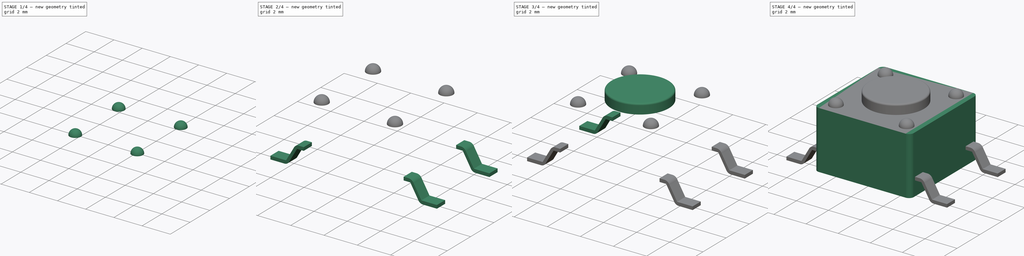
[diagram: build sequence overview — one tinted view per stage of 4, left to right]
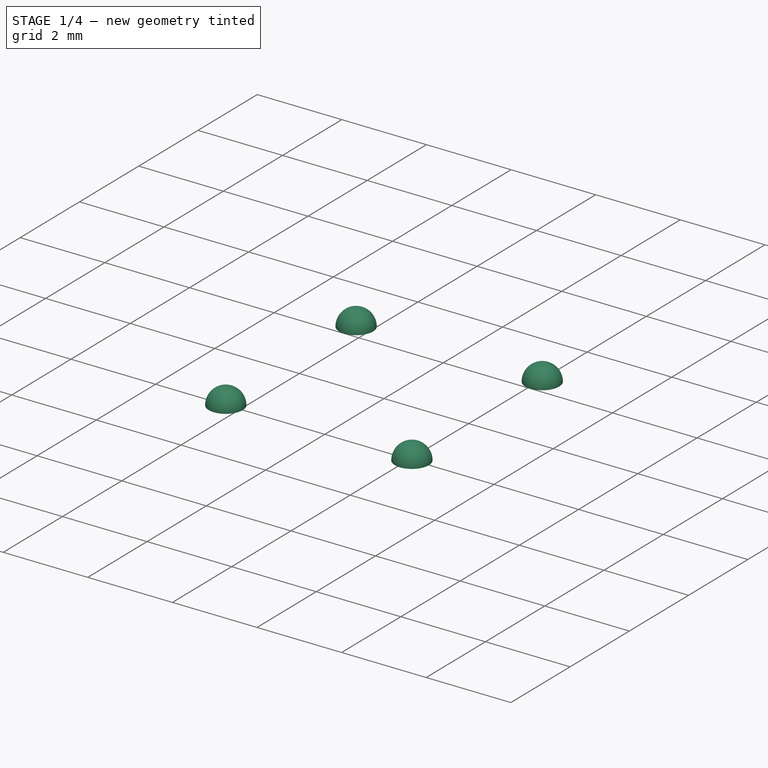
[diagram: stage 1 of 4 — iso view after this stage's code; geometry added in this stage tinted green]
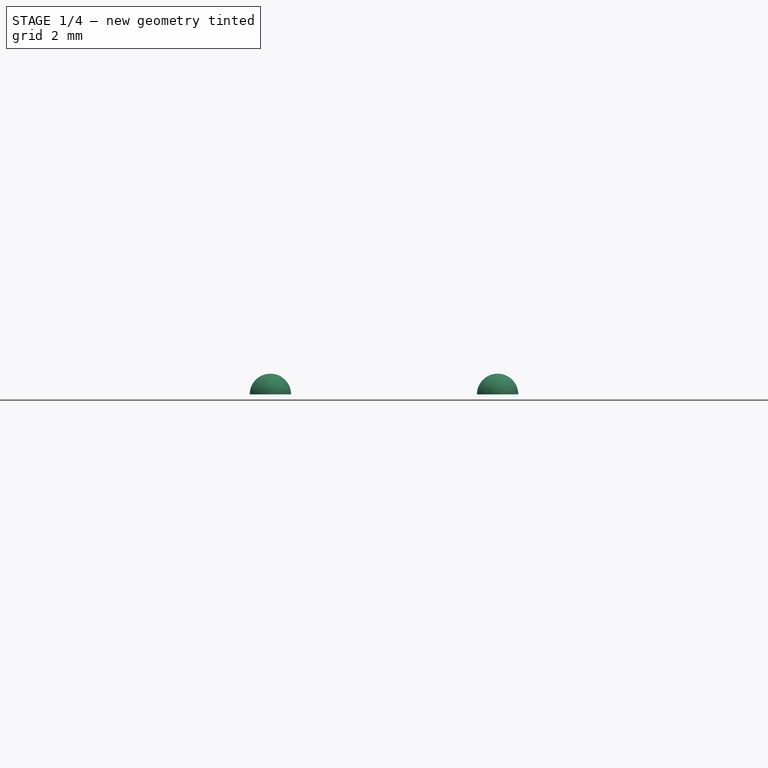
[diagram: stage 1 of 4 — front view after this stage's code; geometry added in this stage tinted green]
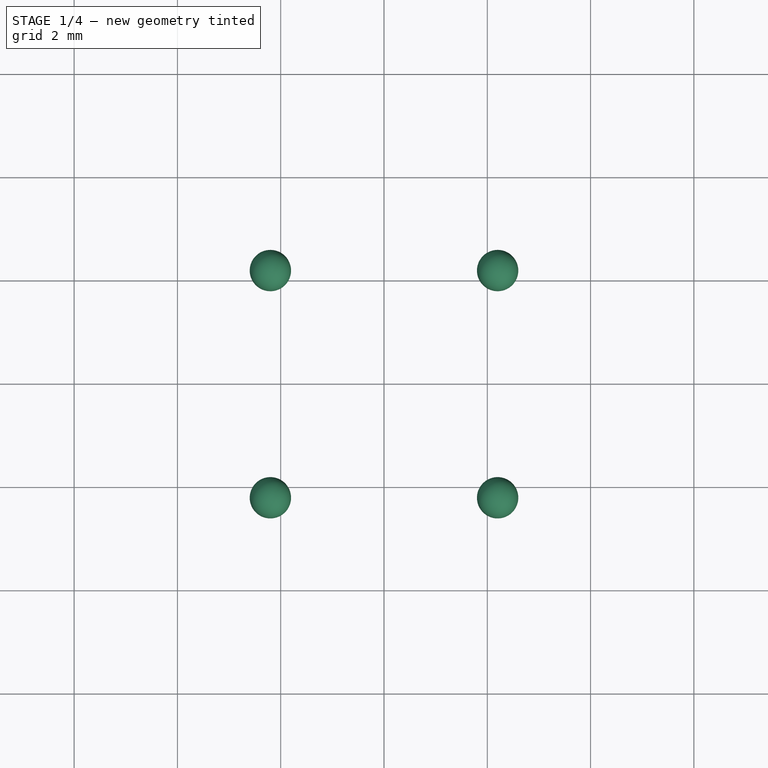
[diagram: stage 1 of 4 — top view after this stage's code; geometry added in this stage tinted green]
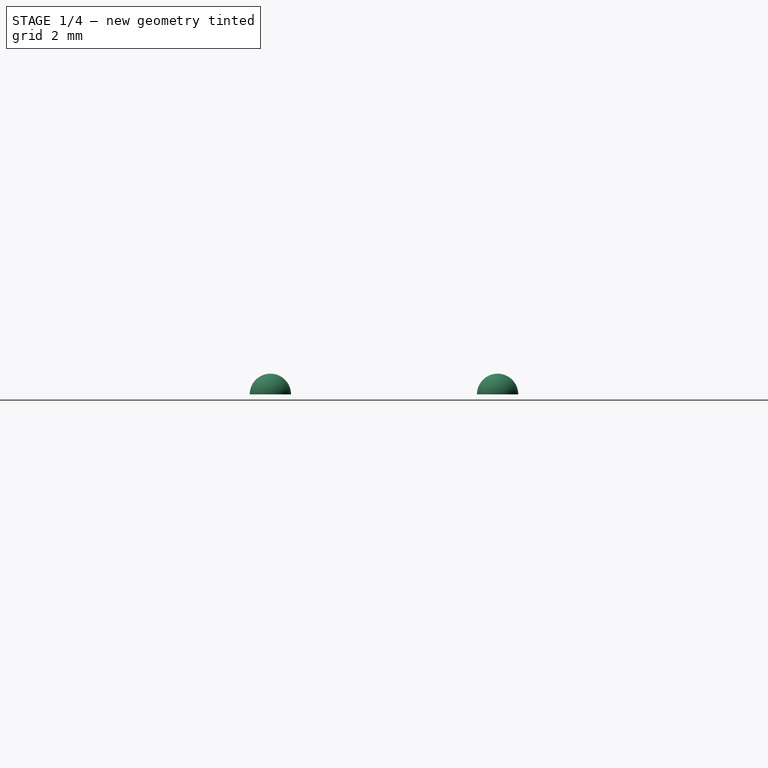
[diagram: stage 1 of 4 — right view after this stage's code; geometry added in this stage tinted green]
FCSTD DOCUMENT  (FreeCAD 0.19R24366 (Git))
Label: SW_SMD_PUSH_6mm_h4.3mm
License: All rights reserved
LicenseURL: http://en.wikipedia.org/wiki/All_rights_reserved
objects: Sketcher::SketchObject×4, PartDesign::Pad×4, Part::Sphere×4, Part::Fillet×3, Part::Box×2, Part::Cylinder×1
note: 22 computed .brp shape members not serialized (recipe doc carries the construction recipe); baked Part::Feature solids carry a one-line shape summary decoded from their .brp

FEATURE [Part::Sphere] Sphere
  Angle1 = 0
  Angle2 = 90
  Angle3 = 360
  AttacherType = Attacher::AttachEngine3D
  Placement = pos=(-2.2,-2.2,3.6) rot=(0,0,1;0rad)
  Radius = 0.4
FEATURE [Part::Sphere] Sphere001
  Angle1 = 0
  Angle2 = 90
  Angle3 = 360
  AttacherType = Attacher::AttachEngine3D
  Placement = pos=(2.2,-2.2,3.6) rot=(0,0,1;0rad)
  Radius = 0.4
FEATURE [Part::Sphere] Sphere002
  Angle1 = 0
  Angle2 = 90
  Angle3 = 360
  AttacherType = Attacher::AttachEngine3D
  Placement = pos=(2.2,2.2,3.6) rot=(0,0,1;0rad)
  Radius = 0.4
FEATURE [Part::Sphere] Sphere003
  Angle1 = 0
  Angle2 = 90
  Angle3 = 360
  AttacherType = Attacher::AttachEngine3D
  Placement = pos=(-2.2,2.2,3.6) rot=(0,0,1;0rad)
  Radius = 0.4
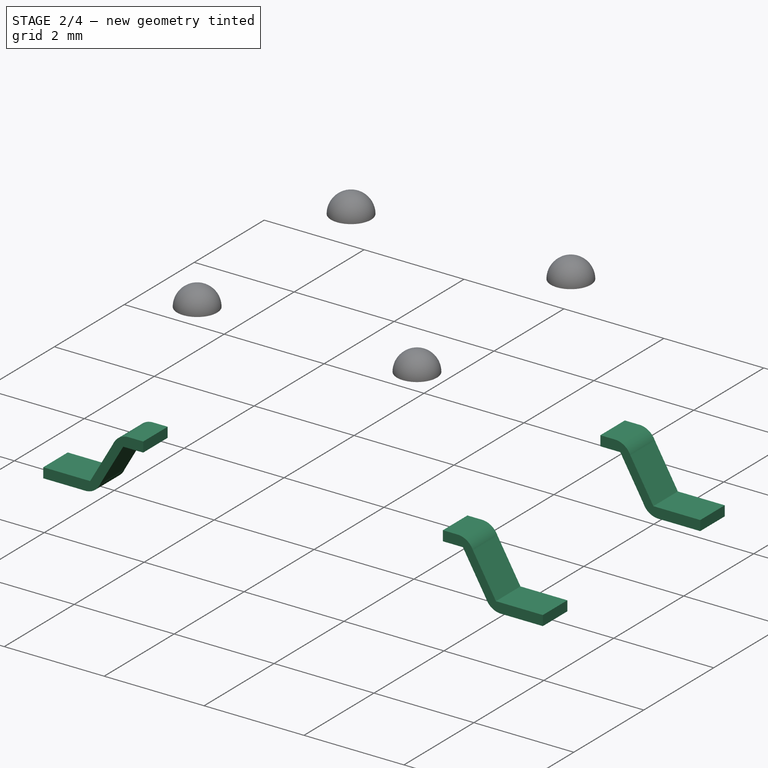
[diagram: stage 2 of 4 — iso view after this stage's code; geometry added in this stage tinted green]
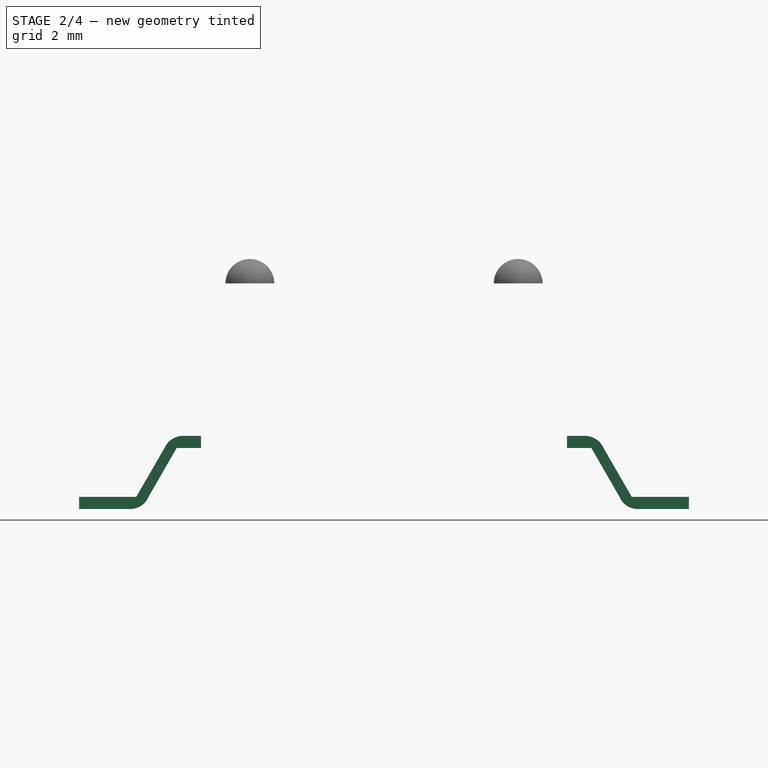
[diagram: stage 2 of 4 — front view after this stage's code; geometry added in this stage tinted green]
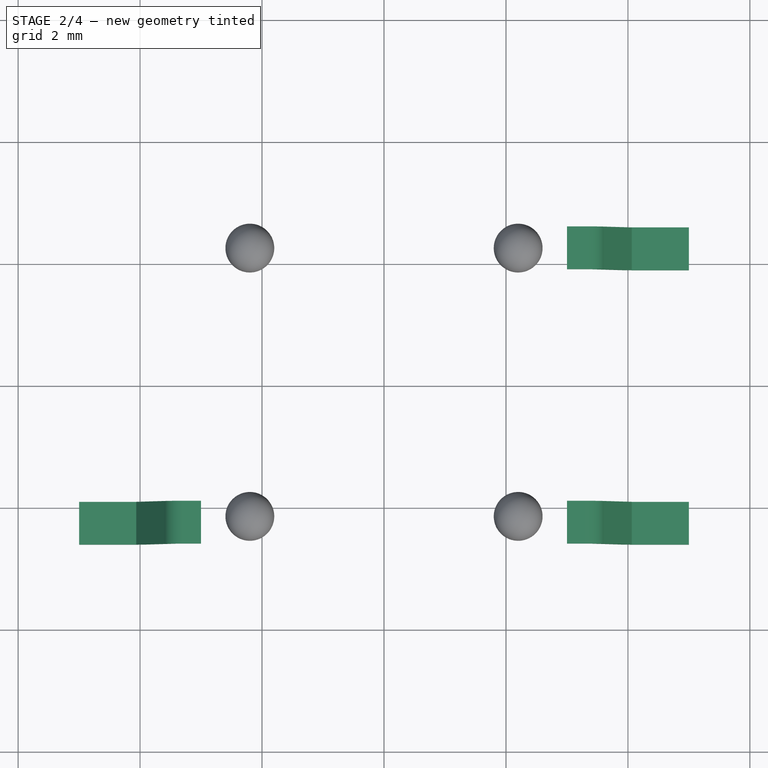
[diagram: stage 2 of 4 — top view after this stage's code; geometry added in this stage tinted green]
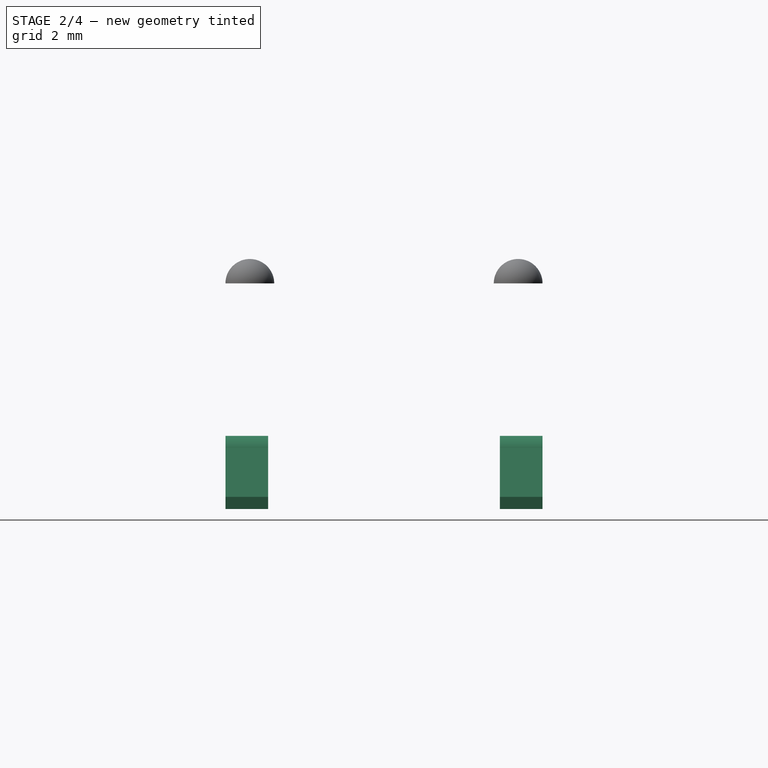
[diagram: stage 2 of 4 — right view after this stage's code; geometry added in this stage tinted green]
FEATURE [Sketcher::SketchObject] Sketch001
  FullyConstrained = false
  MapMode = 5
  Placement = pos=(-3,-1.9,-0.1) rot=(1,0,0;1.5708rad)
  sketch-geometry (10):
    g0: LineSegment StartX=0 StartY=1.2 StartZ=0 EndX=-0.293054 EndY=1.2 EndZ=0
    g1: LineSegment StartX=0 StartY=1 StartZ=0 EndX=-0.4 EndY=1 EndZ=0
    g2: LineSegment StartX=-0.4 StartY=1 StartZ=0 EndX=-0.86188 EndY=0.2 EndZ=0
    g3: LineSegment StartX=-1.15746 StartY=0 StartZ=0 EndX=-2 EndY=0 EndZ=0
    g4: LineSegment StartX=-2 StartY=0 StartZ=0 EndX=-2 EndY=0.2 EndZ=0
    g5: LineSegment StartX=-2 StartY=0.2 StartZ=0 EndX=-1.06188 EndY=0.2 EndZ=0
    g6: LineSegment StartX=-1.06188 StartY=0.2 StartZ=0 EndX=-0.6 EndY=1 EndZ=0
    g7: LineSegment StartX=0 StartY=1 StartZ=0 EndX=0 EndY=1.2 EndZ=0
    g8: ArcOfCircle CenterX=-1.15999 CenterY=0.322159 CenterZ=0 NormalX=0 NormalY=0 NormalZ=1 AngleXU=0 Radius=0.322169 StartAngle=4.72025 EndAngle=5.89428
    g9: ArcOfCircle CenterX=-0.291969 CenterY=0.862795 CenterZ=0 NormalX=0 NormalY=0 NormalZ=1 AngleXU=0 Radius=0.337206 StartAngle=1.57401 EndAngle=2.72255
  constraints (32):
    c: Horizontal(g3)
    c: Horizontal(g5)
    c: Vertical(g4)
    c: Coincident(g3,g4)
    c: Coincident(g4,g5)
    c: Coincident(g5,g6)
    c: Angle(g6,g5) = 2.0944
    c: Horizontal(g1)
    c: Angle(g2,g1) = 2.0944
    c: DistanceX(g1) = 0
    c: Coincident(g1,g7)
    c: Coincident(g0,g7)
    c: Vertical(g7)
    c: DistanceY(g1) = 1
    c: DistanceY(g0) = 1.2
    c: Horizontal(g0)
    c: DistanceX(g3) = -2
    c: DistanceX(g5) = -1.06188
    c: DistanceY(g4,g4) = 0.2
    c: DistanceY(g3) = 0
    c: Coincident(g1,g2)
    c: DistanceY(g2) = 0.2
    c: DistanceX(g6) = -0.6
    c: Coincident(g3,g8)
    c: Coincident(g2,g8)
    c: Coincident(g6,g9)
    c: DistanceX(g1) = -0.4
    c: Coincident(g0,g9)
    c: DistanceX(g0) = -0.293054
    c: DistanceX(g9) = -0.291969
    c: DistanceX(g3) = -1.15746
    c: DistanceY(g8) = 0.322159
FEATURE [PartDesign::Pad] Pad001
  AllowMultiFace = false
  Direction = (1,1,1)
  Length = 0.7
  Length2 = 100
  Placement = pos=(-3,-1.9,-0.1) rot=(1,0,0;1.5708rad)
  Profile = -> Sketch001
  Type = 0
FEATURE [Sketcher::SketchObject] Sketch002
  FullyConstrained = false
  MapMode = 5
  Placement = pos=(3,-1.9,-0.1) rot=(1,0,0;1.5708rad)
  sketch-geometry (10):
    g0: LineSegment StartX=1.15746 StartY=0 StartZ=0 EndX=2 EndY=0 EndZ=0
    g1: LineSegment StartX=2 StartY=0 StartZ=0 EndX=2 EndY=0.2 EndZ=0
    g2: LineSegment StartX=2 StartY=0.2 StartZ=0 EndX=1.06188 EndY=0.2 EndZ=0
    g3: LineSegment StartX=1.06188 StartY=0.2 StartZ=0 EndX=0.6 EndY=1 EndZ=0
    g4: LineSegment StartX=0.293054 StartY=1.2 StartZ=0 EndX=0 EndY=1.2 EndZ=0
    g5: LineSegment StartX=0 StartY=1.2 StartZ=0 EndX=0 EndY=1 EndZ=0
    g6: LineSegment StartX=0 StartY=1 StartZ=0 EndX=0.4 EndY=1 EndZ=0
    g7: LineSegment StartX=0.4 StartY=1 StartZ=0 EndX=0.86188 EndY=0.2 EndZ=0
    g8: ArcOfCircle CenterX=0.291969 CenterY=0.862795 CenterZ=0 NormalX=0 NormalY=0 NormalZ=1 AngleXU=0 Radius=0.337206 StartAngle=0.419041 EndAngle=1.56758
    g9: ArcOfCircle CenterX=1.15999 CenterY=0.322159 CenterZ=0 NormalX=0 NormalY=0 NormalZ=1 AngleXU=0 Radius=0.322169 StartAngle=3.5305 EndAngle=4.70453
  constraints (32):
    c: Horizontal(g0)
    c: Horizontal(g2)
    c: Vertical(g1)
    c: Coincident(g1,g2)
    c: Coincident(g0,g1)
    c: Coincident(g2,g3)
    c: Coincident(g6,g7)
    c: Coincident(g5,g6)
    c: Coincident(g4,g5)
    c: Horizontal(g6)
    c: Vertical(g5)
    c: Horizontal(g4)
    c: DistanceX(g6) = 0.4
    c: DistanceY(g5) = 1
    c: DistanceY(g4) = 1.2
    c: DistanceX(g4) = 0.293054
    c: DistanceX(g3) = 0.6
    c: DistanceX(g2) = 1.06188
    c: DistanceX(g0) = 1.15746
    c: DistanceX(g0) = 2
    c: Angle(g3) = 2.0944
    c: Angle(g7) = -1.0472
    c: DistanceY(g1) = 0.2
    c: Coincident(g4,g8)
    c: Coincident(g3,g8)
    c: DistanceX(g8) = 0.291969
    c: Coincident(g7,g9)
    c: Coincident(g0,g9)
    c: DistanceY(g0) = 0
    c: DistanceY(g9) = 0.322159
    c: DistanceY(g7) = 0.2
    c: DistanceX(g5) = 0
FEATURE [PartDesign::Pad] Pad002
  AllowMultiFace = false
  Direction = (1,1,1)
  Length = 0.7
  Length2 = 100
  Placement = pos=(3,-1.9,-0.1) rot=(1,0,0;1.5708rad)
  Profile = -> Sketch002
  Type = 0
FEATURE [Sketcher::SketchObject] Sketch003
  FullyConstrained = false
  MapMode = 5
  Placement = pos=(3,2.6,-0.1) rot=(1,0,0;1.5708rad)
  sketch-geometry (10):
    g0: LineSegment StartX=1.15746 StartY=0 StartZ=0 EndX=2 EndY=0 EndZ=0
    g1: LineSegment StartX=2 StartY=0 StartZ=0 EndX=2 EndY=0.2 EndZ=0
    g2: LineSegment StartX=2 StartY=0.2 StartZ=0 EndX=1.06188 EndY=0.2 EndZ=0
    g3: LineSegment StartX=1.06188 StartY=0.2 StartZ=0 EndX=0.6 EndY=1 EndZ=0
    g4: LineSegment StartX=0.293054 StartY=1.2 StartZ=0 EndX=0 EndY=1.2 EndZ=0
    g5: LineSegment StartX=0 StartY=1.2 StartZ=0 EndX=0 EndY=1 EndZ=0
    g6: LineSegment StartX=0 StartY=1 StartZ=0 EndX=0.4 EndY=1 EndZ=0
    g7: LineSegment StartX=0.4 StartY=1 StartZ=0 EndX=0.86188 EndY=0.2 EndZ=0
    g8: ArcOfCircle CenterX=0.291969 CenterY=0.862795 CenterZ=0 NormalX=0 NormalY=0 NormalZ=1 AngleXU=0 Radius=0.337206 StartAngle=0.419041 EndAngle=1.56758
    g9: ArcOfCircle CenterX=1.15999 CenterY=0.322159 CenterZ=0 NormalX=0 NormalY=0 NormalZ=1 AngleXU=0 Radius=0.322169 StartAngle=3.5305 EndAngle=4.70453
  constraints (32):
    c: Horizontal(g0)
    c: Horizontal(g2)
    c: Vertical(g1)
    c: Coincident(g1,g2)
    c: Coincident(g0,g1)
    c: Coincident(g2,g3)
    c: Coincident(g6,g7)
    c: Coincident(g5,g6)
    c: Coincident(g4,g5)
    c: Horizontal(g6)
    c: Vertical(g5)
    c: Horizontal(g4)
    c: DistanceX(g6) = 0.4
    c: DistanceY(g5) = 1
    c: DistanceY(g4) = 1.2
    c: DistanceX(g4) = 0.293054
    c: DistanceX(g3) = 0.6
    c: DistanceX(g2) = 1.06188
    c: DistanceX(g0) = 1.15746
    c: DistanceX(g0) = 2
    c: Angle(g3) = 2.0944
    c: Angle(g7) = -1.0472
    c: DistanceY(g1) = 0.2
    c: Coincident(g4,g8)
    c: Coincident(g3,g8)
    c: DistanceX(g8) = 0.291969
    c: Coincident(g7,g9)
    c: Coincident(g0,g9)
    c: DistanceY(g0) = 0
    c: DistanceY(g9) = 0.322159
    c: DistanceY(g7) = 0.2
    c: DistanceX(g5) = 0
FEATURE [PartDesign::Pad] Pad003
  AllowMultiFace = false
  Direction = (1,1,1)
  Length = 0.7
  Length2 = 100
  Placement = pos=(3,2.6,-0.1) rot=(1,0,0;1.5708rad)
  Profile = -> Sketch003
  Type = 0
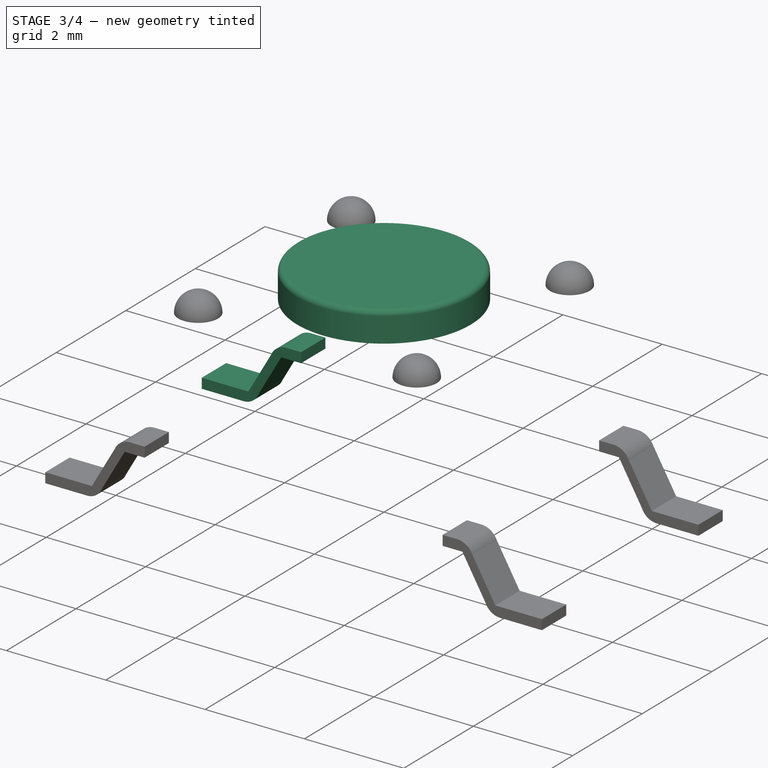
[diagram: stage 3 of 4 — iso view after this stage's code; geometry added in this stage tinted green]
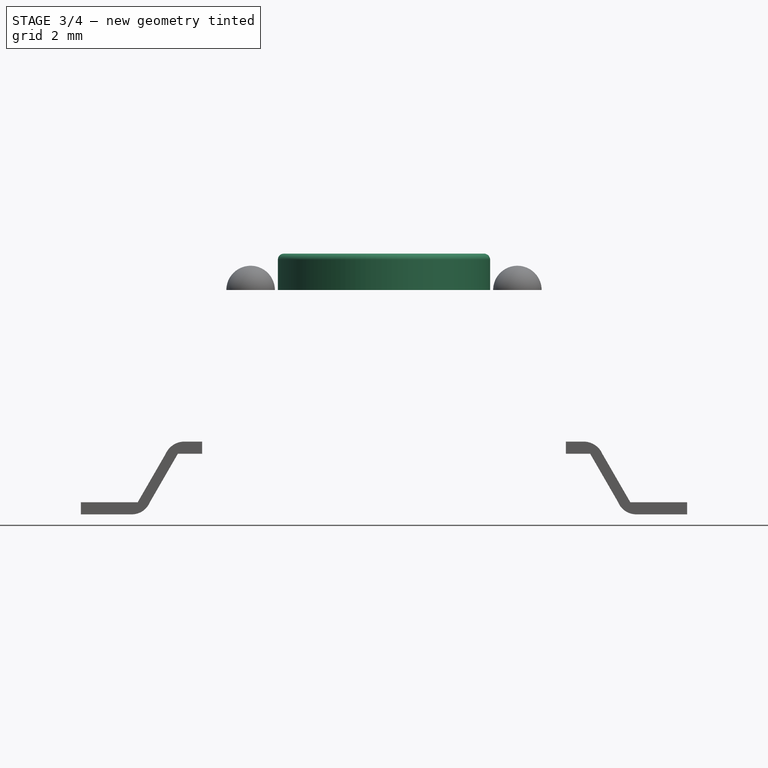
[diagram: stage 3 of 4 — front view after this stage's code; geometry added in this stage tinted green]
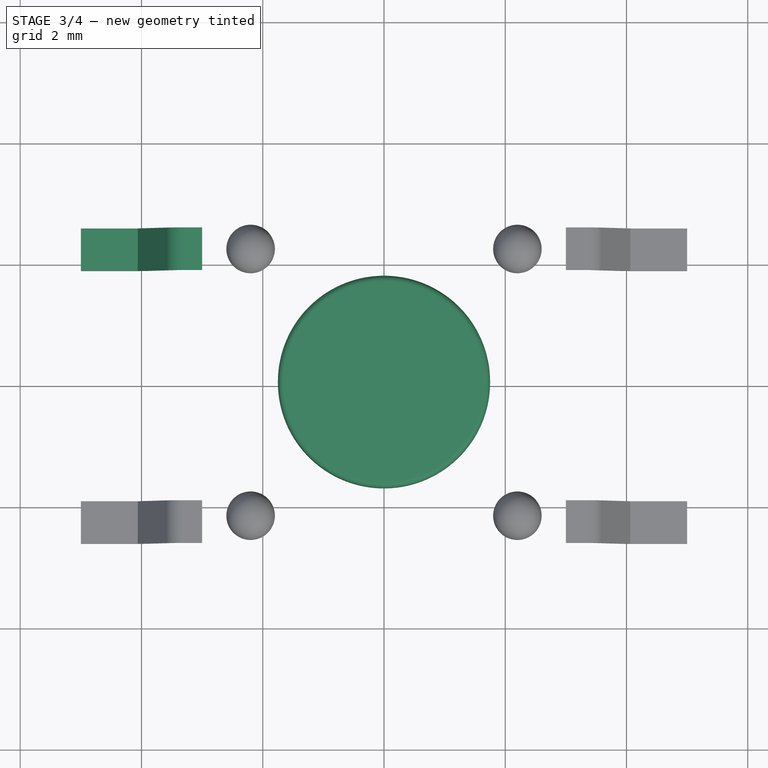
[diagram: stage 3 of 4 — top view after this stage's code; geometry added in this stage tinted green]
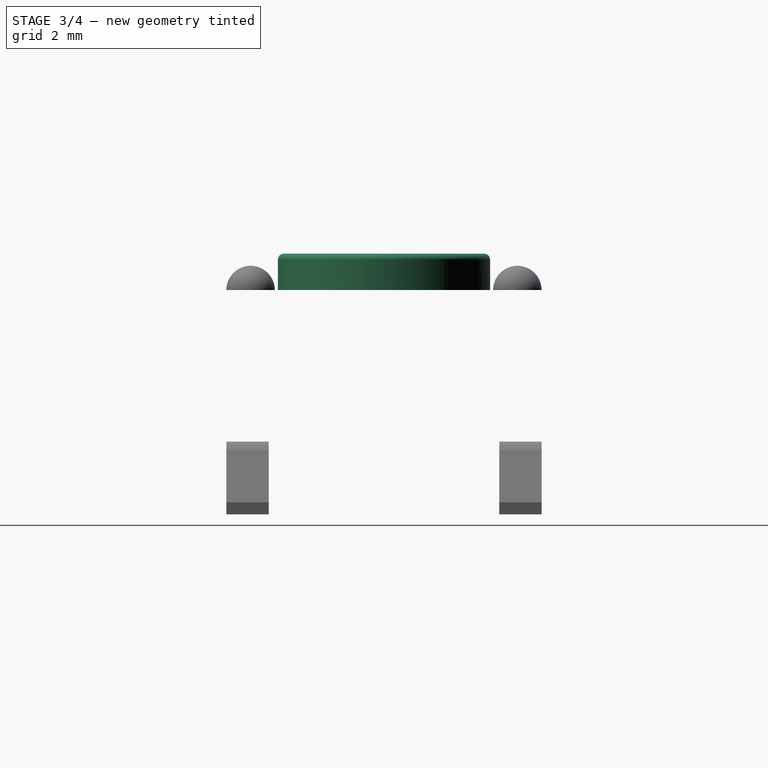
[diagram: stage 3 of 4 — right view after this stage's code; geometry added in this stage tinted green]
FEATURE [Part::Cylinder] Cylinder
  Angle = 360
  AttacherType = Attacher::AttachEngine3D
  Height = 0.6
  Placement = pos=(0,0,3.6) rot=(0,0,1;0rad)
  Radius = 1.75
FEATURE [Part::Fillet] Fillet002
  Base = -> Cylinder
  Edges = 1 edges r=0.1: [Edge1]
FEATURE [Sketcher::SketchObject] Sketch
  FullyConstrained = false
  MapMode = 5
  Placement = pos=(-3,2.6,-0.1) rot=(1,0,0;1.5708rad)
  sketch-geometry (10):
    g0: LineSegment StartX=0 StartY=1.2 StartZ=0 EndX=-0.293054 EndY=1.2 EndZ=0
    g1: LineSegment StartX=0 StartY=1 StartZ=0 EndX=-0.4 EndY=1 EndZ=0
    g2: LineSegment StartX=-0.4 StartY=1 StartZ=0 EndX=-0.86188 EndY=0.2 EndZ=0
    g3: LineSegment StartX=-1.15746 StartY=0 StartZ=0 EndX=-2 EndY=0 EndZ=0
    g4: LineSegment StartX=-2 StartY=0 StartZ=0 EndX=-2 EndY=0.2 EndZ=0
    g5: LineSegment StartX=-2 StartY=0.2 StartZ=0 EndX=-1.06188 EndY=0.2 EndZ=0
    g6: LineSegment StartX=-1.06188 StartY=0.2 StartZ=0 EndX=-0.6 EndY=1 EndZ=0
    g7: LineSegment StartX=0 StartY=1 StartZ=0 EndX=0 EndY=1.2 EndZ=0
    g8: ArcOfCircle CenterX=-1.15999 CenterY=0.322159 CenterZ=0 NormalX=0 NormalY=0 NormalZ=1 AngleXU=0 Radius=0.322169 StartAngle=4.72025 EndAngle=5.89428
    g9: ArcOfCircle CenterX=-0.291969 CenterY=0.862795 CenterZ=0 NormalX=0 NormalY=0 NormalZ=1 AngleXU=0 Radius=0.337206 StartAngle=1.57401 EndAngle=2.72255
  constraints (32):
    c: Horizontal(g3)
    c: Horizontal(g5)
    c: Vertical(g4)
    c: Coincident(g3,g4)
    c: Coincident(g4,g5)
    c: Coincident(g5,g6)
    c: Angle(g6,g5) = 2.0944
    c: Horizontal(g1)
    c: Angle(g2,g1) = 2.0944
    c: DistanceX(g1) = 0
    c: Coincident(g1,g7)
    c: Coincident(g0,g7)
    c: Vertical(g7)
    c: DistanceY(g1) = 1
    c: DistanceY(g0) = 1.2
    c: Horizontal(g0)
    c: DistanceX(g3) = -2
    c: DistanceX(g5) = -1.06188
    c: DistanceY(g4,g4) = 0.2
    c: DistanceY(g3) = 0
    c: Coincident(g1,g2)
    c: DistanceY(g2) = 0.2
    c: DistanceX(g6) = -0.6
    c: Coincident(g3,g8)
    c: Coincident(g2,g8)
    c: Coincident(g6,g9)
    c: DistanceX(g1) = -0.4
    c: Coincident(g0,g9)
    c: DistanceX(g0) = -0.293054
    c: DistanceX(g9) = -0.291969
    c: DistanceX(g3) = -1.15746
    c: DistanceY(g8) = 0.322159
FEATURE [PartDesign::Pad] Pad
  AllowMultiFace = false
  Direction = (1,1,1)
  Length = 0.7
  Length2 = 100
  Placement = pos=(-3,2.6,-0.1) rot=(1,0,0;1.5708rad)
  Profile = -> Sketch
  Type = 0
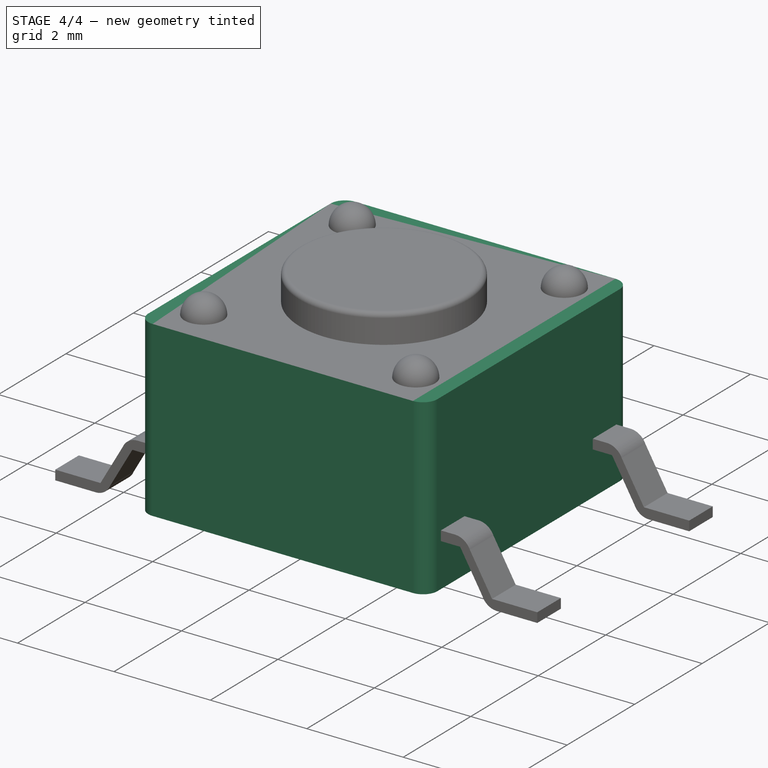
[diagram: stage 4 of 4 — iso view after this stage's code; geometry added in this stage tinted green]
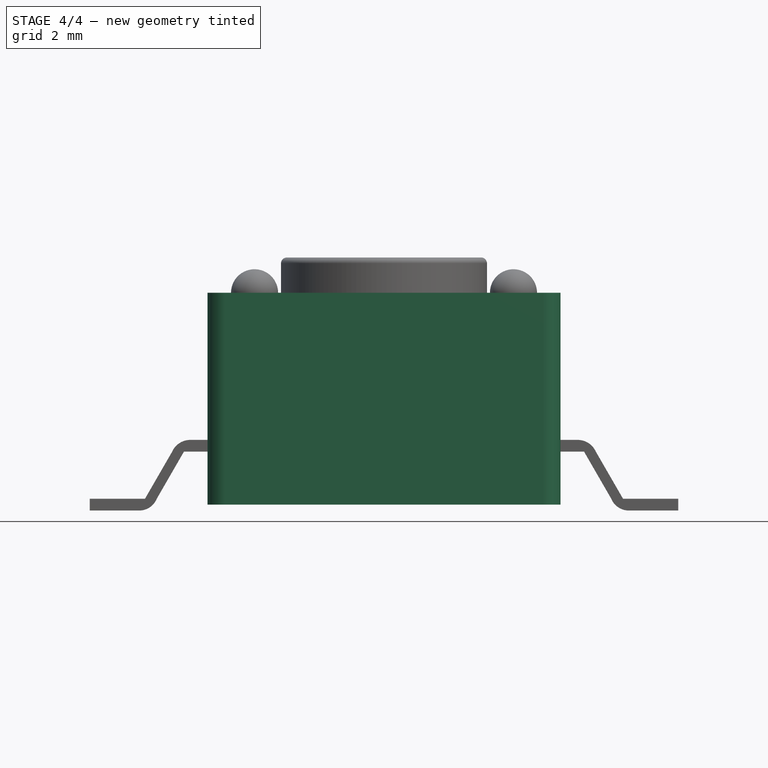
[diagram: stage 4 of 4 — front view after this stage's code; geometry added in this stage tinted green]
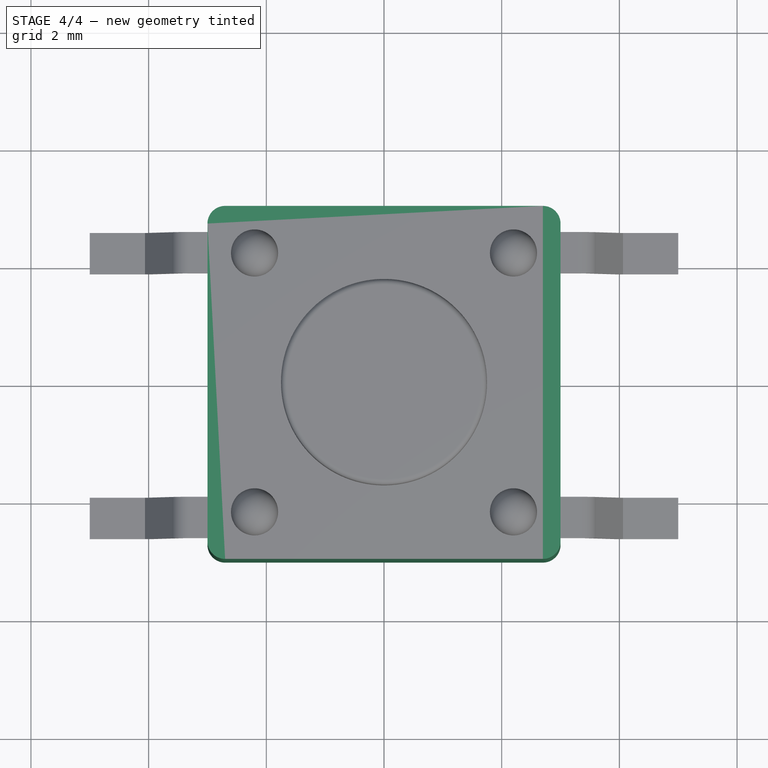
[diagram: stage 4 of 4 — top view after this stage's code; geometry added in this stage tinted green]
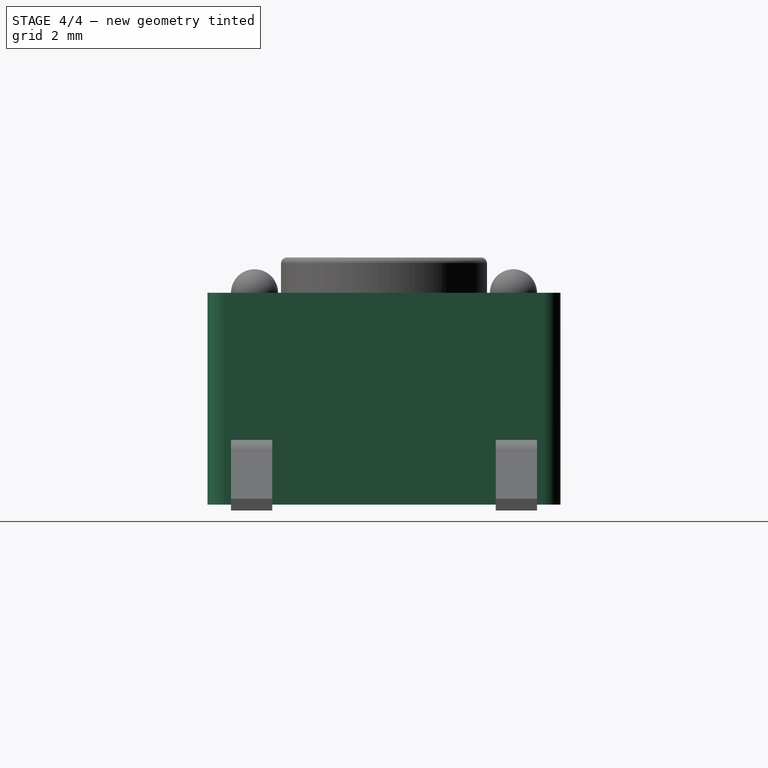
[diagram: stage 4 of 4 — right view after this stage's code; geometry added in this stage tinted green]
FEATURE [Part::Box] Box  label="Cube"
  AttacherType = Attacher::AttachEngine3D
  Height = 3.5
  Length = 6
  Placement = pos=(-3,-3,0) rot=(0,0,1;0rad)
  Width = 6
FEATURE [Part::Box] Box001  label="Cube001"
  AttacherType = Attacher::AttachEngine3D
  Height = 0.1
  Length = 6
  Placement = pos=(-3,-3,3.5) rot=(0,0,1;0rad)
  Width = 6
FEATURE [Part::Fillet] Fillet
  Base = -> Box
  Edges = 4 edges r=0.3: [Edge1,Edge3,Edge5,Edge7]
FEATURE [Part::Fillet] Fillet001
  Base = -> Box001
  Edges = 4 edges r=0.3: [Edge1,Edge3,Edge5,Edge7]
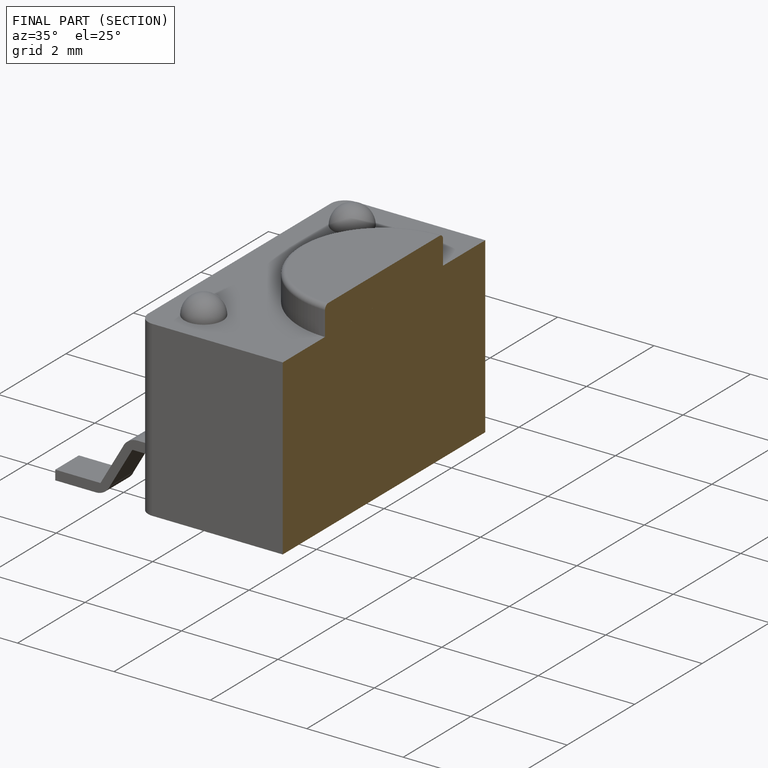
[diagram: finished part — half-section view (interior)]
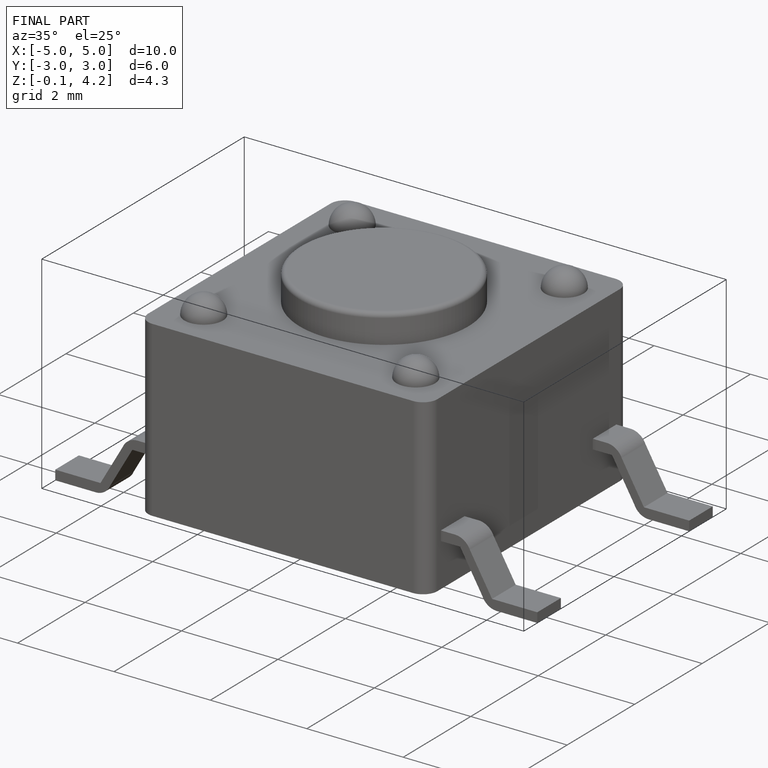
[diagram: finished part — iso view with bounding-box wireframe]
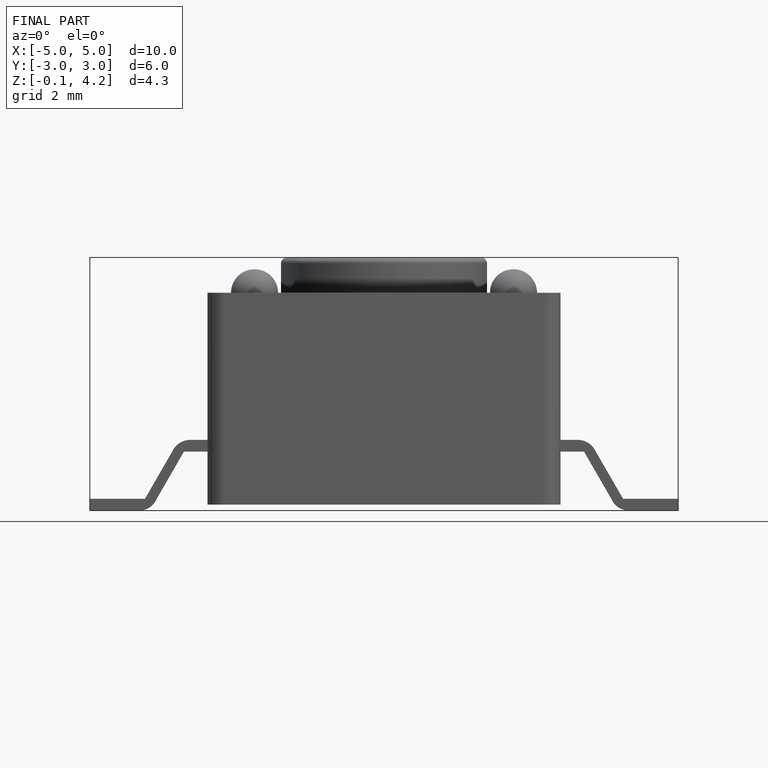
[diagram: finished part — front view with bounding-box wireframe]
